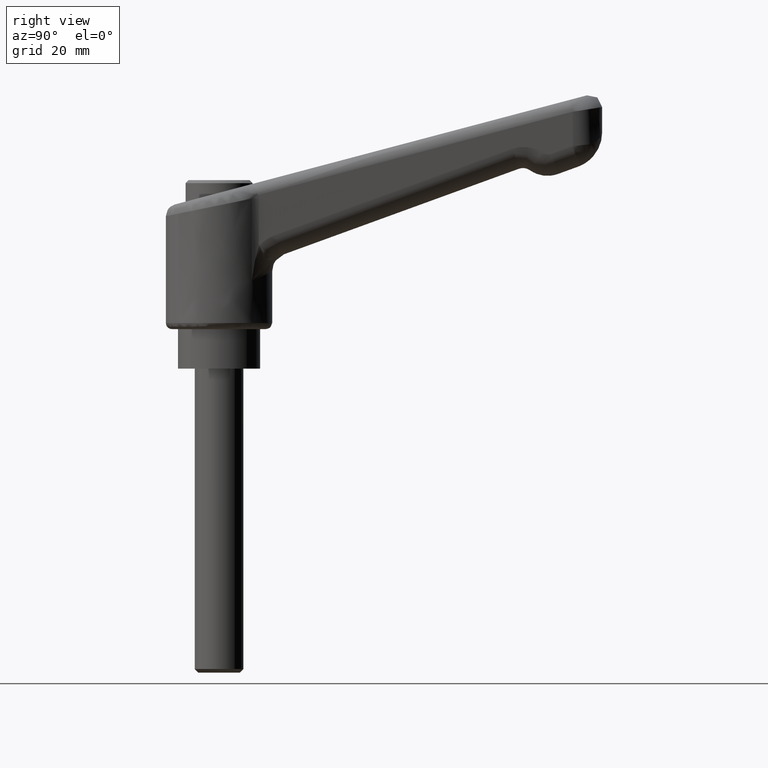
[diagram: clean part render]
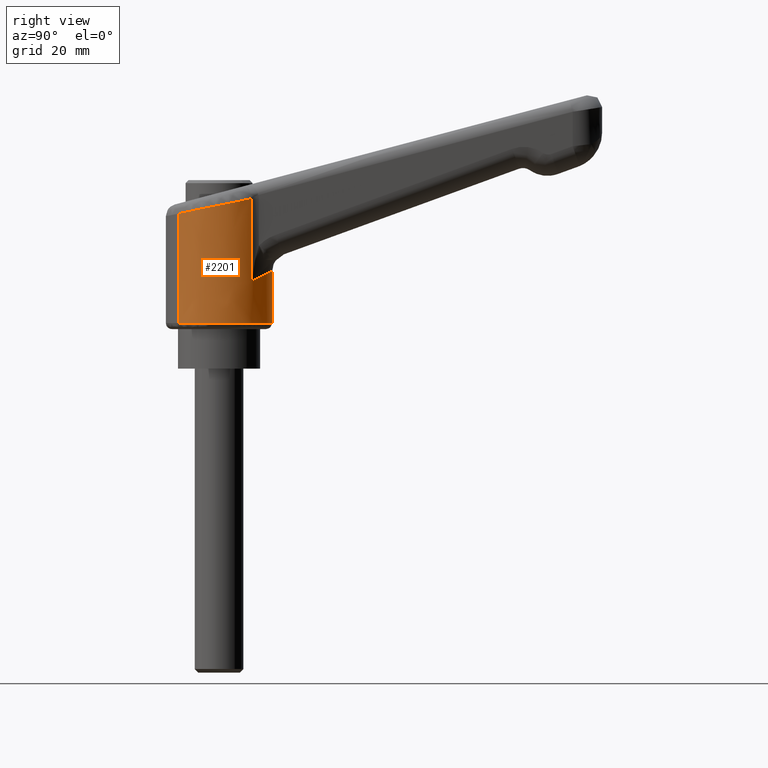
[diagram: same view with one face highlighted and labeled with its STEP entity id]
A machine part, right view. The second image highlights one B-rep face of the part: STEP entity #2201.
In plain terms, the highlighted face is a freeform B-spline surface patch.
Its self-contained STEP definition (entity closure, byte-faithful):
#1992=CARTESIAN_POINT('',(-6.688081113620875,-5.641991759797934,25.480449907003582));
#1993=VERTEX_POINT('',#1992);
#1994=CARTESIAN_POINT('',(-6.015279081070553,6.354440776054007,25.617898961844560));
#1995=VERTEX_POINT('',#1994);
#2011=CARTESIAN_POINT('',(-6.015265018880842,6.354456541514424,7.499999665280699));
#2012=VERTEX_POINT('',#2011);
#2013=CARTESIAN_POINT('',(-6.015279081070553,6.354440776054007,25.617898961844560));
#2014=CARTESIAN_POINT('',(-6.015265018880842,6.354456541514424,7.499999665280699));
#2015=QUASI_UNIFORM_CURVE('',1,(#2013,#2014),.UNSPECIFIED.,.F.,.U.);
#2016=EDGE_CURVE('',#1995,#2012,#2015,.T.);
#2031=CARTESIAN_POINT('',(-6.687931096901052,-5.641865640080589,7.499999433078087));
#2032=VERTEX_POINT('',#2031);
#2043=CARTESIAN_POINT('',(-6.688081113620875,-5.641991759797934,25.480449907003582));
#2044=CARTESIAN_POINT('',(-6.687931096901052,-5.641865640080589,7.499999433078087));
#2045=QUASI_UNIFORM_CURVE('',1,(#2043,#2044),.UNSPECIFIED.,.F.,.U.);
#2046=EDGE_CURVE('',#1993,#2032,#2045,.T.);
#2051=CARTESIAN_POINT('',(-6.150669041893755,6.226277741528556,28.456560220697565));
#2052=CARTESIAN_POINT('',(-6.083266406990067,6.290082518312539,28.456560220697558));
#2053=CARTESIAN_POINT('',(0.339191921189308,12.369719028361146,28.456560220697554));
#2054=CARTESIAN_POINT('',(6.354455474775228,6.015263553585919,28.456560220697551));
#2055=CARTESIAN_POINT('',(12.369719028361146,-0.339191921189308,28.456560220697554));
#2056=CARTESIAN_POINT('',(6.015263553585919,-6.354455474775228,28.456560220697551));
#2057=CARTESIAN_POINT('',(-0.339191921189308,-12.369719028361146,28.456560220697554));
#2058=CARTESIAN_POINT('',(-6.354455474775228,-6.015263553585919,28.456560220697551));
#2059=CARTESIAN_POINT('',(-6.526609733346843,-5.833401767956573,28.456560220697558));
#2060=CARTESIAN_POINT('',(-6.750377876501264,-5.568144469516794,28.456560220697554));
#2061=CARTESIAN_POINT('',(-6.813201107342797,-5.493673098134926,28.456560220697558));
#2062=CARTESIAN_POINT('',(-6.150669041893755,6.226277741528556,6.976085337296073));
#2063=CARTESIAN_POINT('',(-6.083266406990067,6.290082518312539,6.976085337296071));
#2064=CARTESIAN_POINT('',(0.339191921189308,12.369719028361146,6.976085337296070));
#2065=CARTESIAN_POINT('',(6.354455474775228,6.015263553585919,6.976085337296070));
#2066=CARTESIAN_POINT('',(12.369719028361146,-0.339191921189308,6.976085337296070));
#2067=CARTESIAN_POINT('',(6.015263553585919,-6.354455474775228,6.976085337296070));
#2068=CARTESIAN_POINT('',(-0.339191921189308,-12.369719028361146,6.976085337296070));
#2069=CARTESIAN_POINT('',(-6.354455474775228,-6.015263553585919,6.976085337296070));
#2070=CARTESIAN_POINT('',(-6.526609733346843,-5.833401767956573,6.976085337296071));
#2071=CARTESIAN_POINT('',(-6.750377876501264,-5.568144469516794,6.976085337296071));
#2072=CARTESIAN_POINT('',(-6.813201107342797,-5.493673098134926,6.976085337296071));
#2080=(BOUNDED_SURFACE()B_SPLINE_SURFACE(2,1,((#2051,#2062),(#2052,#2063),(#2053,#2064),(#2054,#2065),(#2055,#2066),(#2056,#2067),(#2057,#2068),(#2058,#2069),(#2059,#2070),(#2060,#2071),(#2061,#2072)),.UNSPECIFIED.,.F.,.F.,.U.)B_SPLINE_SURFACE_WITH_KNOTS((3,1,2,2,2,1,3),(2,2),(0.0,0.220386785125206,14.717861468183530,29.215336151241861,43.712810834300178,44.292709821622509,44.513071557252303),(0.0,21.480474883401492),.UNSPECIFIED.)GEOMETRIC_REPRESENTATION_ITEM()RATIONAL_B_SPLINE_SURFACE(((1.008904970871196,1.008904970871196),(1.004452485435598,1.004452485435598),(0.707106781186548,0.707106781186548),(1.0,1.0),(0.707106781186548,0.707106781186548),(1.0,1.0),(0.707106781186548,0.707106781186548),(1.0,1.0),(0.988284271247462,0.988284271247462),(0.973409979784509,0.973409979784509),(0.969314158773890,0.969314158773890)))REPRESENTATION_ITEM('')SURFACE());
#2081=CARTESIAN_POINT('',(5.378522906579990,-6.901738284185690,27.945424589920599));
#2082=VERTEX_POINT('',#2081);
#2083=CARTESIAN_POINT('',(5.378522906579988,-6.901738284185687,27.945424589920599));
#2084=CARTESIAN_POINT('',(-0.977537447306345,-11.855014517118942,26.647003938257686));
#2085=CARTESIAN_POINT('',(-6.436393221341035,-5.927507258559471,25.531864893499829));
#2086=CARTESIAN_POINT('',(-6.565342781424651,-5.787487172844926,25.505522983179073));
#2087=CARTESIAN_POINT('',(-6.688081113620875,-5.641991759797934,25.480449907003578));
#2095=(BOUNDED_CURVE()B_SPLINE_CURVE(2,(#2083,#2084,#2085,#2086,#2087),.UNSPECIFIED.,.F.,.U.)B_SPLINE_CURVE_WITH_KNOTS((3,2,3),(0.0,0.333333333333333,0.343947609758273),.UNSPECIFIED.)CURVE()GEOMETRIC_REPRESENTATION_ITEM()RATIONAL_B_SPLINE_CURVE((1.0,0.735587796724693,1.0,0.991580367352926,0.983696944555727))REPRESENTATION_ITEM(''));
#2096=EDGE_CURVE('',#2082,#1993,#2095,.T.);
#2097=ORIENTED_EDGE('',*,*,#2096,.T.);
#2098=ORIENTED_EDGE('',*,*,#2046,.T.);
#2099=CARTESIAN_POINT('',(0.055252036868808,-8.749823386819363,7.499999679418629));
#2100=VERTEX_POINT('',#2099);
#2101=CARTESIAN_POINT('',(-6.687931096901052,-5.641865640080589,7.499999433078087));
#2102=CARTESIAN_POINT('',(-6.288864775135214,-6.115104123616189,7.499999447590096));
#2103=CARTESIAN_POINT('',(-5.418701792807758,-6.948496896624500,7.499999479279158));
#2104=CARTESIAN_POINT('',(-3.938191910885370,-7.873760002195794,7.499999533308978));
#2105=CARTESIAN_POINT('',(-2.122339113862422,-8.571447076671081,7.499999599677294));
#2106=CARTESIAN_POINT('',(-0.763492434315311,-8.755332503080112,7.499999649420349));
#2107=CARTESIAN_POINT('',(0.055252036868808,-8.749823386819363,7.499999679418629));
#2108=B_SPLINE_CURVE_WITH_KNOTS('',3,(#2101,#2102,#2103,#2104,#2105,#2106,#2107),.UNSPECIFIED.,.F.,.U.,(4,1,1,1,4),(0.000000019711366,1.857094515587856,3.594382835303411,5.211843769347355,7.668004072770064),.UNSPECIFIED.);
#2109=EDGE_CURVE('',#2032,#2100,#2108,.T.);
#2110=ORIENTED_EDGE('',*,*,#2109,.T.);
#2111=CARTESIAN_POINT('',(8.750000000000000,0.0,7.500000000000000));
#2112=VERTEX_POINT('',#2111);
#2113=CARTESIAN_POINT('',(0.055252036868808,-8.749823386819363,7.499999679418629));
#2114=CARTESIAN_POINT('',(0.839556652489274,-8.745184432120301,7.499999708155846));
#2115=CARTESIAN_POINT('',(2.157275481897139,-8.558014531021021,7.499999756478877));
#2116=CARTESIAN_POINT('',(3.861568035383152,-7.903117713687636,7.499999819073230));
#2117=CARTESIAN_POINT('',(5.055463762402300,-7.180742964581323,7.499999862982722));
#2118=CARTESIAN_POINT('',(6.184166955105743,-6.247788681571378,7.499999904552069));
#2119=CARTESIAN_POINT('',(7.030130082507223,-5.273518125347627,7.499999935771613));
#2120=CARTESIAN_POINT('',(7.746256872609106,-4.121177793832145,7.499999962275095));
#2121=CARTESIAN_POINT('',(8.309856126794182,-2.885279994570034,7.499999983209328));
#2122=CARTESIAN_POINT('',(8.674159565249324,-1.461638470788854,7.499999996884800));
#2123=CARTESIAN_POINT('',(8.750024773010109,-0.427789491188672,7.499999999902379));
#2124=CARTESIAN_POINT('',(8.750000000000000,0.0,7.500000000000000));
#2125=B_SPLINE_CURVE_WITH_KNOTS('',3,(#2113,#2114,#2115,#2116,#2117,#2118,#2119,#2120,#2121,#2122,#2123,#2124),.UNSPECIFIED.,.F.,.U.,(4,1,1,1,1,1,1,1,1,4),(0.000000037441630,2.352870400592206,3.957111648970574,5.454392548404098,6.523899537692079,8.341993077223769,9.304542224489484,10.587933675136791,12.406061859817870,13.689445522895090),.UNSPECIFIED.);
#2126=EDGE_CURVE('',#2100,#2112,#2125,.T.);
#2127=ORIENTED_EDGE('',*,*,#2126,.T.);
#2128=CARTESIAN_POINT('',(-0.219888335129202,8.747236656228871,7.499999962095310));
#2129=VERTEX_POINT('',#2128);
#2130=CARTESIAN_POINT('',(8.750000000000000,0.0,7.500000000000000));
#2131=CARTESIAN_POINT('',(8.750132011979295,0.654590401028789,7.500000002098306));
#2132=CARTESIAN_POINT('',(8.643388163363477,1.600029712557615,7.500000004342942));
#2133=CARTESIAN_POINT('',(8.278414540112440,2.896854749564497,7.500000005815346));
#2134=CARTESIAN_POINT('',(7.762363681422251,4.142954981293691,7.500000006014870));
#2135=CARTESIAN_POINT('',(6.948216300799073,5.403218065215248,7.500000004068436));
#2136=CARTESIAN_POINT('',(5.842069451473973,6.565591079555573,7.499999999662439));
#2137=CARTESIAN_POINT('',(4.532606026746516,7.557455261690682,7.499999993215258));
#2138=CARTESIAN_POINT('',(2.977114605441134,8.294323754879164,7.499999984143090));
#2139=CARTESIAN_POINT('',(1.309198762142706,8.696532982210654,7.499999973172042));
#2140=CARTESIAN_POINT('',(0.289062827887892,8.760069493196433,7.499999965877372));
#2141=CARTESIAN_POINT('',(-0.219888335129202,8.747236656228871,7.499999962095310));
#2142=B_SPLINE_CURVE_WITH_KNOTS('',3,(#2130,#2131,#2132,#2133,#2134,#2135,#2136,#2137,#2138,#2139,#2140,#2141),.UNSPECIFIED.,.F.,.U.,(4,1,1,1,1,1,1,1,1,4),(0.000000019734040,1.963737286632677,2.836532025185260,4.036605472619643,6.000387203648348,7.309507953512527,8.836880335763627,10.909747734309789,12.437127493541009,13.964469791885961),.UNSPECIFIED.);
#2143=EDGE_CURVE('',#2112,#2129,#2142,.T.);
#2144=ORIENTED_EDGE('',*,*,#2143,.T.);
#2145=CARTESIAN_POINT('',(-0.219888335129202,8.747236656228871,7.499999962095310));
#2146=CARTESIAN_POINT('',(-1.054645884164155,8.726674507635210,7.499999929452264));
#2147=CARTESIAN_POINT('',(-2.351818335122643,8.505708446982714,7.499999872830417));
#2148=CARTESIAN_POINT('',(-4.333943596670763,7.687345482576066,7.499999771314781));
#2149=CARTESIAN_POINT('',(-5.409126562957747,6.928772961463427,7.499999706433112));
#2150=CARTESIAN_POINT('',(-6.015265018880842,6.354456541514424,7.499999665280699));
#2151=B_SPLINE_CURVE_WITH_KNOTS('',3,(#2145,#2146,#2147,#2148,#2149,#2150),.UNSPECIFIED.,.F.,.U.,(4,1,1,4),(0.000000014838487,2.504895193715296,3.907628376502490,6.412523555418973),.UNSPECIFIED.);
#2152=EDGE_CURVE('',#2129,#2012,#2151,.T.);
#2153=ORIENTED_EDGE('',*,*,#2152,.T.);
#2154=ORIENTED_EDGE('',*,*,#2016,.F.);
#2155=CARTESIAN_POINT('',(5.378522906579990,6.901738284185690,27.945424589920599));
#2156=VERTEX_POINT('',#2155);
#2157=CARTESIAN_POINT('',(-6.015279081070553,6.354440776054007,25.617898961844567));
#2158=CARTESIAN_POINT('',(-0.553581187385267,11.524624730159189,26.733614321856180));
#2159=CARTESIAN_POINT('',(5.378522906579990,6.901738284185690,27.945424589920599));
#2167=(BOUNDED_CURVE()B_SPLINE_CURVE(2,(#2157,#2158,#2159),.UNSPECIFIED.,.F.,.U.)B_SPLINE_CURVE_WITH_KNOTS((3,3),(0.683315146825165,1.0),.UNSPECIFIED.)CURVE()GEOMETRIC_REPRESENTATION_ITEM()RATIONAL_B_SPLINE_CURVE((0.974906809430371,0.748793980684374,1.0))REPRESENTATION_ITEM(''));
#2168=EDGE_CURVE('',#1995,#2156,#2167,.T.);
#2169=ORIENTED_EDGE('',*,*,#2168,.T.);
#2170=CARTESIAN_POINT('',(5.378522906579990,6.901738284185690,14.350094705642800));
#2171=VERTEX_POINT('',#2170);
#2172=CARTESIAN_POINT('',(5.378522906579990,6.901738284185690,27.945424589920599));
#2173=CARTESIAN_POINT('',(5.378522906579990,6.901738284185690,14.350094705642800));
#2174=QUASI_UNIFORM_CURVE('',1,(#2172,#2173),.UNSPECIFIED.,.F.,.U.);
#2175=EDGE_CURVE('',#2156,#2171,#2174,.T.);
#2176=ORIENTED_EDGE('',*,*,#2175,.T.);
#2177=CARTESIAN_POINT('',(5.378522906579990,-6.901738284185690,14.350094705642780));
#2178=VERTEX_POINT('',#2177);
#2179=CARTESIAN_POINT('',(5.378522906579980,6.901738284185691,14.350094705642780));
#2180=CARTESIAN_POINT('',(8.749999999999998,4.274347034430589,15.997936797323650));
#2181=CARTESIAN_POINT('',(8.749999999999998,1.071531E-015,15.997936797323639));
#2182=CARTESIAN_POINT('',(8.749999999999998,-4.274347034430584,15.997936797323650));
#2183=CARTESIAN_POINT('',(5.378522906579985,-6.901738284185687,14.350094705642791));
#2191=(BOUNDED_CURVE()B_SPLINE_CURVE(2,(#2179,#2180,#2181,#2182,#2183),.UNSPECIFIED.,.F.,.U.)B_SPLINE_CURVE_WITH_KNOTS((3,2,3),(0.0,0.500000000000000,1.0),.UNSPECIFIED.)CURVE()GEOMETRIC_REPRESENTATION_ITEM()RATIONAL_B_SPLINE_CURVE((1.0,0.898523325290048,1.0,0.898523325290048,1.0))REPRESENTATION_ITEM(''));
#2192=EDGE_CURVE('',#2171,#2178,#2191,.T.);
#2193=ORIENTED_EDGE('',*,*,#2192,.T.);
#2194=CARTESIAN_POINT('',(5.378522906579990,-6.901738284185690,14.350094705642780));
#2195=CARTESIAN_POINT('',(5.378522906579990,-6.901738284185690,27.945424589920599));
#2196=QUASI_UNIFORM_CURVE('',1,(#2194,#2195),.UNSPECIFIED.,.F.,.U.);
#2197=EDGE_CURVE('',#2178,#2082,#2196,.T.);
#2198=ORIENTED_EDGE('',*,*,#2197,.T.);
#2199=EDGE_LOOP('',(#2097,#2098,#2110,#2127,#2144,#2153,#2154,#2169,#2176,#2193,#2198));
#2200=FACE_OUTER_BOUND('',#2199,.T.);
#2201=ADVANCED_FACE('',(#2200),#2080,.T.);